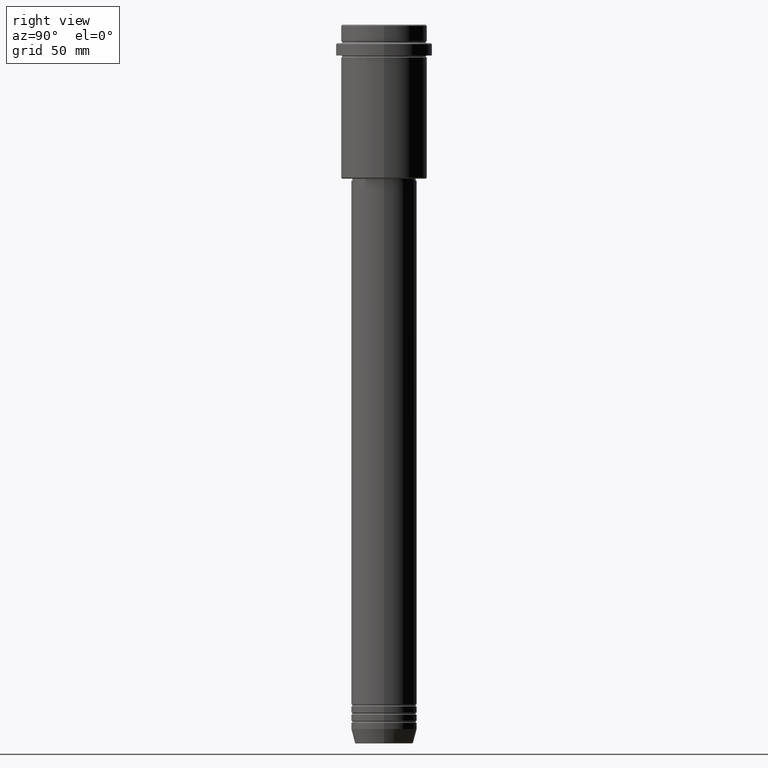
[diagram: clean part render]
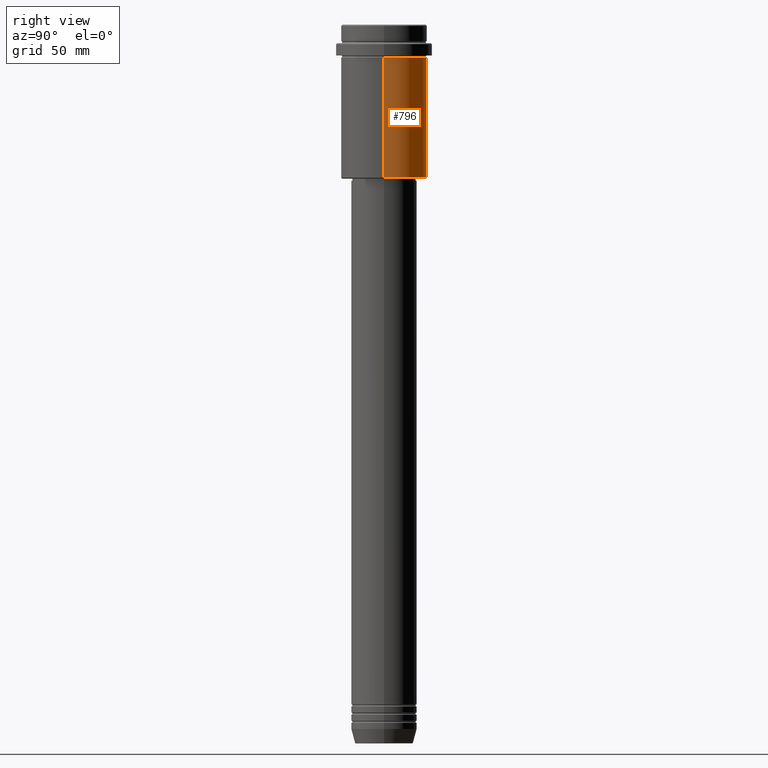
[diagram: same view with one face highlighted and labeled with its STEP entity id]
A machine part, right view. The second image highlights one B-rep face of the part: STEP entity #796.
In plain terms, the highlighted cylindrical surface (partial cylindrical patch) has radius 21 mm, axis along (-0, -0, 1).
Its self-contained STEP definition (entity closure, byte-faithful):
#4 = CARTESIAN_POINT ( 'NONE',  ( 0.000000000000000000, 0.000000000000000000, -16.00000000000000355 ) ) ;
#7 = FACE_OUTER_BOUND ( 'NONE', #1141, .T. ) ;
#31 = EDGE_CURVE ( 'NONE', #582, #57, #111, .T. ) ;
#57 = VERTEX_POINT ( 'NONE', #95 ) ;
#68 = AXIS2_PLACEMENT_3D ( 'NONE', #4, #445, #681 ) ;
#70 = CARTESIAN_POINT ( 'NONE',  ( 20.99999999999999645, 0.000000000000000000, 0.000000000000000000 ) ) ;
#95 = CARTESIAN_POINT ( 'NONE',  ( -20.99999999999999645, 2.571758278209441267E-15, -74.49999999999997158 ) ) ;
#111 = CIRCLE ( 'NONE', #1325, 20.99999999999999645 ) ;
#159 = CARTESIAN_POINT ( 'NONE',  ( 20.99999999999999645, 0.000000000000000000, -16.00000000000000355 ) ) ;
#166 = CARTESIAN_POINT ( 'NONE',  ( -20.99999999999999645, 2.571758278209441267E-15, -16.00000000000000355 ) ) ;
#199 = VECTOR ( 'NONE', #201, 1000.000000000000000 ) ;
#201 = DIRECTION ( 'NONE',  ( -0.000000000000000000, -0.000000000000000000, 1.000000000000000000 ) ) ;
#222 = VECTOR ( 'NONE', #330, 1000.000000000000000 ) ;
#330 = DIRECTION ( 'NONE',  ( -0.000000000000000000, -0.000000000000000000, 1.000000000000000000 ) ) ;
#342 = EDGE_CURVE ( 'NONE', #57, #529, #998, .T. ) ;
#445 = DIRECTION ( 'NONE',  ( -0.000000000000000000, -0.000000000000000000, 1.000000000000000000 ) ) ;
#472 = ORIENTED_EDGE ( 'NONE', *, *, #342, .T. ) ;
#502 = VERTEX_POINT ( 'NONE', #159 ) ;
#529 = VERTEX_POINT ( 'NONE', #166 ) ;
#546 = AXIS2_PLACEMENT_3D ( 'NONE', #1110, #1224, #803 ) ;
#582 = VERTEX_POINT ( 'NONE', #639 ) ;
#639 = CARTESIAN_POINT ( 'NONE',  ( 20.99999999999999645, 0.000000000000000000, -74.49999999999997158 ) ) ;
#640 = EDGE_CURVE ( 'NONE', #582, #502, #738, .T. ) ;
#681 = DIRECTION ( 'NONE',  ( 1.000000000000000000, 0.000000000000000000, 0.000000000000000000 ) ) ;
#738 = LINE ( 'NONE', #70, #199 ) ;
#796 = ADVANCED_FACE ( 'NONE', ( #7 ), #985, .T. ) ;
#798 = CARTESIAN_POINT ( 'NONE',  ( -20.99999999999999645, 2.571758278209441267E-15, 0.000000000000000000 ) ) ;
#803 = DIRECTION ( 'NONE',  ( 1.000000000000000000, 0.000000000000000000, 0.000000000000000000 ) ) ;
#849 = CARTESIAN_POINT ( 'NONE',  ( 0.000000000000000000, 0.000000000000000000, -74.49999999999997158 ) ) ;
#861 = ORIENTED_EDGE ( 'NONE', *, *, #1273, .F. ) ;
#902 = CIRCLE ( 'NONE', #68, 20.99999999999999645 ) ;
#985 = CYLINDRICAL_SURFACE ( 'NONE', #546, 20.99999999999999645 ) ;
#998 = LINE ( 'NONE', #798, #222 ) ;
#1089 = DIRECTION ( 'NONE',  ( -0.000000000000000000, -0.000000000000000000, 1.000000000000000000 ) ) ;
#1110 = CARTESIAN_POINT ( 'NONE',  ( 0.000000000000000000, 0.000000000000000000, 0.000000000000000000 ) ) ;
#1141 = EDGE_LOOP ( 'NONE', ( #1399, #472, #861, #1176 ) ) ;
#1176 = ORIENTED_EDGE ( 'NONE', *, *, #640, .F. ) ;
#1224 = DIRECTION ( 'NONE',  ( -0.000000000000000000, -0.000000000000000000, 1.000000000000000000 ) ) ;
#1273 = EDGE_CURVE ( 'NONE', #502, #529, #902, .T. ) ;
#1299 = DIRECTION ( 'NONE',  ( -1.000000000000000000, 0.000000000000000000, 0.000000000000000000 ) ) ;
#1325 = AXIS2_PLACEMENT_3D ( 'NONE', #849, #1089, #1299 ) ;
#1399 = ORIENTED_EDGE ( 'NONE', *, *, #31, .T. ) ;